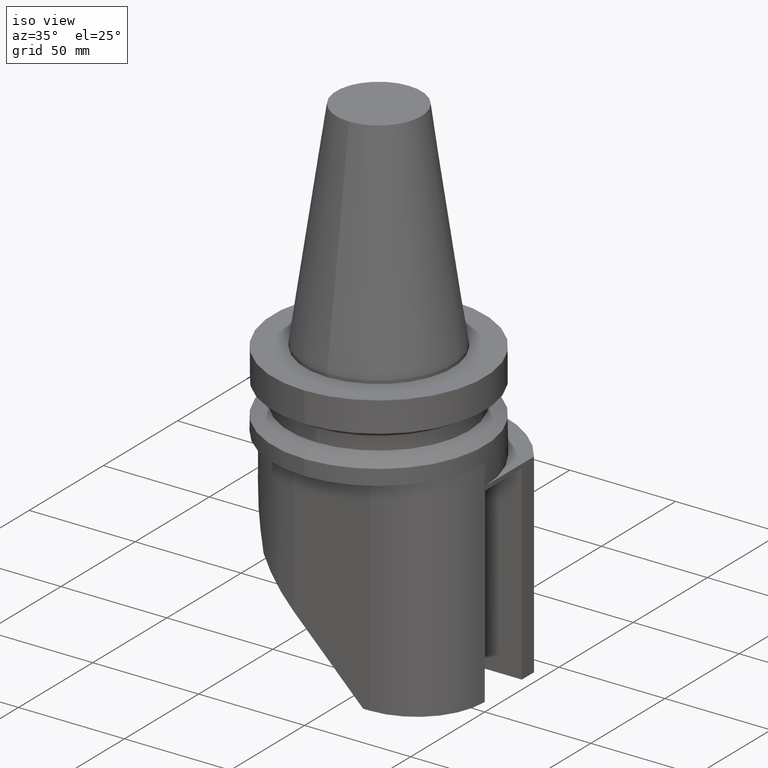
[diagram: clean part render]
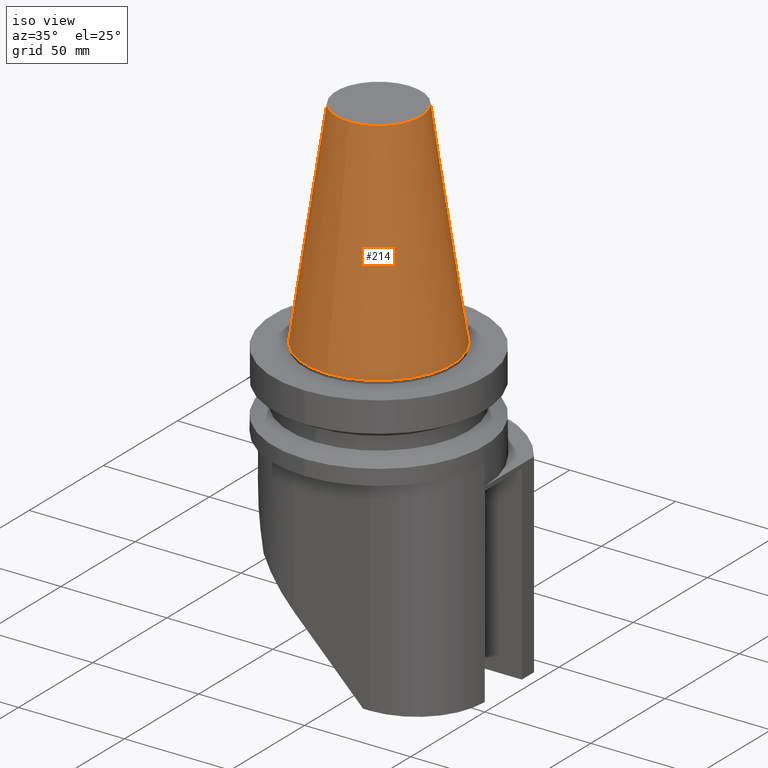
[diagram: same view with one face highlighted and labeled with its STEP entity id]
A machine part, iso view. The second image highlights one B-rep face of the part: STEP entity #214.
In plain terms, the highlighted conical surface has half-angle 8.297 deg.
Its self-contained STEP definition (entity closure, byte-faithful):
#129=EDGE_CURVE('Unnamed[1]',#343,#343,#344,.T.);
#214=ADVANCED_FACE('Unnamed[1]',(#459,#460),#461,.T.);
#236=EDGE_CURVE('Unnamed[1]',#485,#485,#486,.T.);
#343=VERTEX_POINT('',#615);
#344=CIRCLE('',#616,34.9250000000018);
#459=FACE_BOUND('',#778,.T.);
#460=FACE_BOUND('',#779,.T.);
#461=CONICAL_SURFACE('',#780,27.5020833333347,0.144812498238939);
#485=VERTEX_POINT('',#817);
#486=CIRCLE('',#818,20.0791666666676);
#615=CARTESIAN_POINT('',(3.8631367723339E-028,-34.9250000000018,-6.30622787228313E-012));
#616=AXIS2_PLACEMENT_3D('',#938,#939,#940);
#778=EDGE_LOOP('',(#1100));
#779=EDGE_LOOP('',(#1101));
#780=AXIS2_PLACEMENT_3D('',#1102,#1103,#1104);
#817=CARTESIAN_POINT('',(-6.23345220766002E-015,-20.0791666666677,101.8));
#818=AXIS2_PLACEMENT_3D('',#1129,#1130,#1131);
#938=CARTESIAN_POINT('',(3.83742274169651E-028,1.22781806549504E-014,-6.26698692940408E-012));
#939=DIRECTION('',(-6.12323399573677E-017,-1.0715745552368E-015,1.0));
#940=DIRECTION('',(7.0442170186695E-032,-1.0,-1.0715745552368E-015));
#1100=ORIENTED_EDGE('',*,*,#236,.F.);
#1101=ORIENTED_EDGE('',*,*,#129,.T.);
#1102=CARTESIAN_POINT('',(-3.11672610382982E-015,-4.22649642066079E-014,50.8999999999968));
#1103=DIRECTION('',(6.12323399573677E-017,1.07157455523684E-015,-1.0));
#1104=DIRECTION('',(7.04421701866941E-032,-1.0,-1.07157455523684E-015));
#1129=CARTESIAN_POINT('',(-6.23345220766002E-015,-9.68081090681663E-014,101.8));
#1130=DIRECTION('',(-6.12323399573677E-017,-1.07157455523684E-015,1.0));
#1131=DIRECTION('',(7.04421701867015E-032,-1.0,-1.07157455523684E-015));